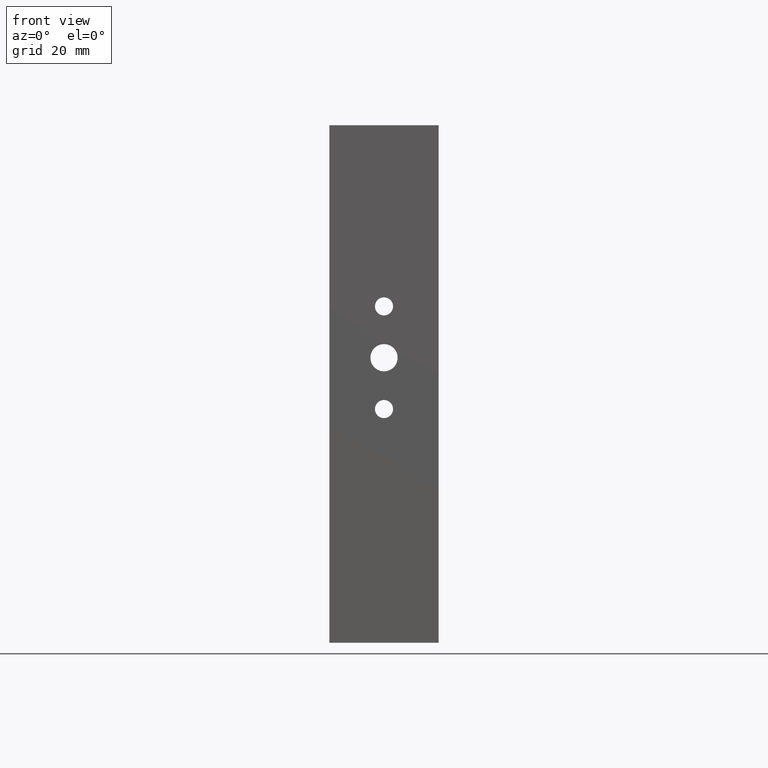
[diagram: clean part render]
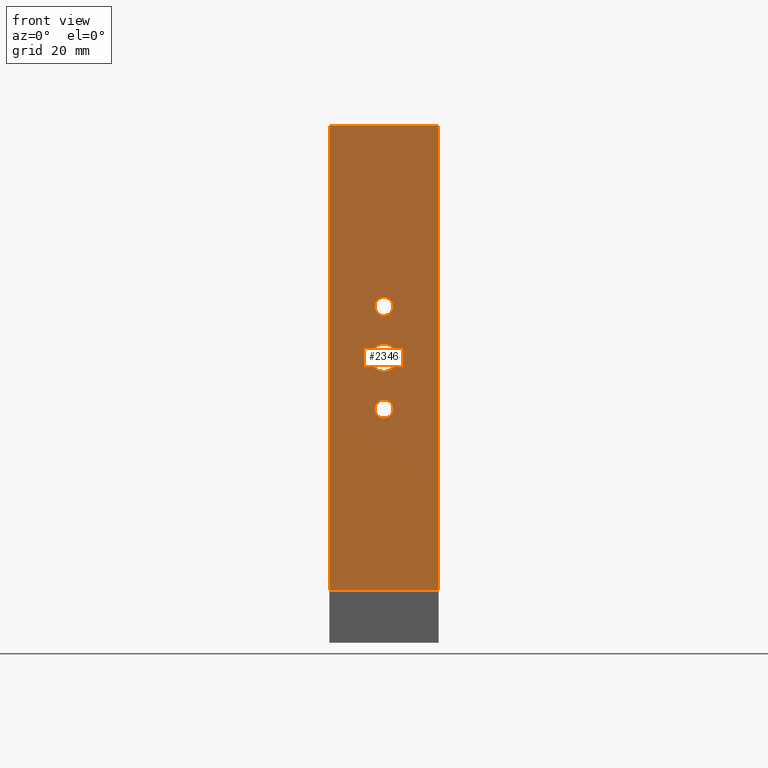
[diagram: same view with one face highlighted and labeled with its STEP entity id]
A machine part, front view. The second image highlights one B-rep face of the part: STEP entity #2346.
In plain terms, the highlighted planar face has unit normal (0, 1, 0).
Its self-contained STEP definition (entity closure, byte-faithful):
#43 = EDGE_CURVE ( 'NONE', #6162, #2077, #7346, .T. ) ;
#65 = CIRCLE ( 'NONE', #1881, 2.247899999999996900 ) ;
#126 = VERTEX_POINT ( 'NONE', #8044 ) ;
#140 = FACE_BOUND ( 'NONE', #7896, .T. ) ;
#196 = EDGE_CURVE ( 'NONE', #6162, #4966, #2399, .T. ) ;
#203 = DIRECTION ( 'NONE',  ( 0.0000000000000000000, 0.0000000000000000000, 1.000000000000000000 ) ) ;
#319 = DIRECTION ( 'NONE',  ( 0.0000000000000000000, 0.0000000000000000000, 1.000000000000000000 ) ) ;
#422 = CARTESIAN_POINT ( 'NONE',  ( -5.068119891008173300, -1.880108991825614900, 14.94789999999999700 ) ) ;
#504 = VERTEX_POINT ( 'NONE', #1446 ) ;
#568 = LINE ( 'NONE', #4132, #7768 ) ;
#706 = CIRCLE ( 'NONE', #6064, 2.247899999999996900 ) ;
#734 = VECTOR ( 'NONE', #4720, 1000.000000000000000 ) ;
#787 = ORIENTED_EDGE ( 'NONE', *, *, #2552, .T. ) ;
#915 = ORIENTED_EDGE ( 'NONE', *, *, #7558, .F. ) ;
#961 = ORIENTED_EDGE ( 'NONE', *, *, #196, .F. ) ;
#1118 = DIRECTION ( 'NONE',  ( -0.0000000000000000000, 1.000000000000000000, -0.0000000000000000000 ) ) ;
#1219 = CIRCLE ( 'NONE', #7625, 2.247899999999996900 ) ;
#1394 = DIRECTION ( 'NONE',  ( -0.0000000000000000000, 1.000000000000000000, -0.0000000000000000000 ) ) ;
#1446 = CARTESIAN_POINT ( 'NONE',  ( 8.431880108991826700, -1.880108991825614900, -57.50000000000000000 ) ) ;
#1554 = LINE ( 'NONE', #8207, #8173 ) ;
#1601 = VERTEX_POINT ( 'NONE', #5506 ) ;
#1631 = DIRECTION ( 'NONE',  ( 0.0000000000000000000, -0.0000000000000000000, 1.000000000000000000 ) ) ;
#1881 = AXIS2_PLACEMENT_3D ( 'NONE', #6475, #1394, #319 ) ;
#1997 = AXIS2_PLACEMENT_3D ( 'NONE', #7498, #1118, #7476 ) ;
#2077 = VERTEX_POINT ( 'NONE', #2969 ) ;
#2128 = CIRCLE ( 'NONE', #5060, 3.378199999999998300 ) ;
#2191 = CARTESIAN_POINT ( 'NONE',  ( -18.56811989100817000, -1.880108991825614900, 57.50000000000000000 ) ) ;
#2201 = ORIENTED_EDGE ( 'NONE', *, *, #7954, .T. ) ;
#2296 = CARTESIAN_POINT ( 'NONE',  ( -18.56811989100817000, -1.880108991825614900, 57.50000000000000000 ) ) ;
#2346 = ADVANCED_FACE ( 'NONE', ( #5314, #140, #4003, #3497 ), #5344, .F. ) ;
#2399 = LINE ( 'NONE', #2296, #4811 ) ;
#2456 = AXIS2_PLACEMENT_3D ( 'NONE', #2691, #5828, #5908 ) ;
#2552 = EDGE_CURVE ( 'NONE', #7747, #1601, #1219, .T. ) ;
#2651 = ORIENTED_EDGE ( 'NONE', *, *, #43, .T. ) ;
#2691 = CARTESIAN_POINT ( 'NONE',  ( -5.068119891008173300, -1.880108991825614900, 0.0000000000000000000 ) ) ;
#2773 = CARTESIAN_POINT ( 'NONE',  ( -5.068119891008173300, -1.880108991825614900, 3.378199999999998300 ) ) ;
#2825 = DIRECTION ( 'NONE',  ( -0.0000000000000000000, 1.000000000000000000, -0.0000000000000000000 ) ) ;
#2969 = CARTESIAN_POINT ( 'NONE',  ( -18.56811989100817000, -1.880108991825614900, -57.50000000000000000 ) ) ;
#2973 = AXIS2_PLACEMENT_3D ( 'NONE', #2191, #7997, #1631 ) ;
#3086 = CARTESIAN_POINT ( 'NONE',  ( -5.068119891008173300, -1.880108991825614900, -3.378199999999998300 ) ) ;
#3145 = VERTEX_POINT ( 'NONE', #3086 ) ;
#3497 = FACE_OUTER_BOUND ( 'NONE', #3968, .T. ) ;
#3542 = CIRCLE ( 'NONE', #1997, 2.247899999999996900 ) ;
#3656 = DIRECTION ( 'NONE',  ( -0.0000000000000000000, 1.000000000000000000, -0.0000000000000000000 ) ) ;
#3748 = EDGE_LOOP ( 'NONE', ( #6822, #3759 ) ) ;
#3759 = ORIENTED_EDGE ( 'NONE', *, *, #5878, .T. ) ;
#3874 = CIRCLE ( 'NONE', #2456, 3.378199999999998300 ) ;
#3903 = EDGE_CURVE ( 'NONE', #6861, #3145, #3874, .T. ) ;
#3908 = EDGE_CURVE ( 'NONE', #1601, #7747, #706, .T. ) ;
#3927 = EDGE_CURVE ( 'NONE', #6020, #126, #65, .T. ) ;
#3968 = EDGE_LOOP ( 'NONE', ( #2201, #915, #961, #2651 ) ) ;
#3998 = DIRECTION ( 'NONE',  ( -0.0000000000000000000, 1.000000000000000000, -0.0000000000000000000 ) ) ;
#4003 = FACE_BOUND ( 'NONE', #3748, .T. ) ;
#4071 = CARTESIAN_POINT ( 'NONE',  ( -18.56811989100817000, -1.880108991825614900, 57.50000000000000000 ) ) ;
#4112 = CARTESIAN_POINT ( 'NONE',  ( -5.068119891008173300, -1.880108991825614900, 0.0000000000000000000 ) ) ;
#4132 = CARTESIAN_POINT ( 'NONE',  ( 8.431880108991826700, -1.880108991825614900, 57.50000000000000000 ) ) ;
#4135 = DIRECTION ( 'NONE',  ( 0.0000000000000000000, 0.0000000000000000000, 1.000000000000000000 ) ) ;
#4256 = CARTESIAN_POINT ( 'NONE',  ( -5.068119891008173300, -1.880108991825614900, 12.69999999999999900 ) ) ;
#4339 = DIRECTION ( 'NONE',  ( 1.000000000000000000, 0.0000000000000000000, 0.0000000000000000000 ) ) ;
#4564 = EDGE_LOOP ( 'NONE', ( #787, #6177 ) ) ;
#4720 = DIRECTION ( 'NONE',  ( -0.0000000000000000000, -0.0000000000000000000, -1.000000000000000000 ) ) ;
#4811 = VECTOR ( 'NONE', #6741, 1000.000000000000000 ) ;
#4966 = VERTEX_POINT ( 'NONE', #7452 ) ;
#5024 = EDGE_CURVE ( 'NONE', #126, #6020, #3542, .T. ) ;
#5060 = AXIS2_PLACEMENT_3D ( 'NONE', #4112, #2825, #4135 ) ;
#5263 = ORIENTED_EDGE ( 'NONE', *, *, #3927, .T. ) ;
#5314 = FACE_BOUND ( 'NONE', #4564, .T. ) ;
#5344 = PLANE ( 'NONE',  #2973 ) ;
#5506 = CARTESIAN_POINT ( 'NONE',  ( -5.068119891008173300, -1.880108991825614900, 10.45210000000000200 ) ) ;
#5828 = DIRECTION ( 'NONE',  ( -0.0000000000000000000, 1.000000000000000000, -0.0000000000000000000 ) ) ;
#5878 = EDGE_CURVE ( 'NONE', #3145, #6861, #2128, .T. ) ;
#5908 = DIRECTION ( 'NONE',  ( 0.0000000000000000000, 0.0000000000000000000, 1.000000000000000000 ) ) ;
#6020 = VERTEX_POINT ( 'NONE', #7785 ) ;
#6064 = AXIS2_PLACEMENT_3D ( 'NONE', #7864, #3998, #203 ) ;
#6162 = VERTEX_POINT ( 'NONE', #4071 ) ;
#6177 = ORIENTED_EDGE ( 'NONE', *, *, #3908, .T. ) ;
#6475 = CARTESIAN_POINT ( 'NONE',  ( -5.068119891008173300, -1.880108991825614900, -12.69999999999999900 ) ) ;
#6690 = DIRECTION ( 'NONE',  ( -0.0000000000000000000, -0.0000000000000000000, -1.000000000000000000 ) ) ;
#6741 = DIRECTION ( 'NONE',  ( 1.000000000000000000, 0.0000000000000000000, 0.0000000000000000000 ) ) ;
#6822 = ORIENTED_EDGE ( 'NONE', *, *, #3903, .T. ) ;
#6861 = VERTEX_POINT ( 'NONE', #2773 ) ;
#6876 = DIRECTION ( 'NONE',  ( 0.0000000000000000000, 0.0000000000000000000, 1.000000000000000000 ) ) ;
#7342 = CARTESIAN_POINT ( 'NONE',  ( -18.56811989100817000, -1.880108991825614900, 57.50000000000000000 ) ) ;
#7346 = LINE ( 'NONE', #7342, #734 ) ;
#7452 = CARTESIAN_POINT ( 'NONE',  ( 8.431880108991826700, -1.880108991825614900, 57.50000000000000000 ) ) ;
#7476 = DIRECTION ( 'NONE',  ( 0.0000000000000000000, 0.0000000000000000000, 1.000000000000000000 ) ) ;
#7498 = CARTESIAN_POINT ( 'NONE',  ( -5.068119891008173300, -1.880108991825614900, -12.69999999999999900 ) ) ;
#7558 = EDGE_CURVE ( 'NONE', #4966, #504, #568, .T. ) ;
#7625 = AXIS2_PLACEMENT_3D ( 'NONE', #4256, #3656, #6876 ) ;
#7747 = VERTEX_POINT ( 'NONE', #422 ) ;
#7768 = VECTOR ( 'NONE', #6690, 1000.000000000000000 ) ;
#7785 = CARTESIAN_POINT ( 'NONE',  ( -5.068119891008173300, -1.880108991825614900, -14.94789999999999700 ) ) ;
#7829 = ORIENTED_EDGE ( 'NONE', *, *, #5024, .T. ) ;
#7864 = CARTESIAN_POINT ( 'NONE',  ( -5.068119891008173300, -1.880108991825614900, 12.69999999999999900 ) ) ;
#7896 = EDGE_LOOP ( 'NONE', ( #7829, #5263 ) ) ;
#7954 = EDGE_CURVE ( 'NONE', #2077, #504, #1554, .T. ) ;
#7997 = DIRECTION ( 'NONE',  ( 0.0000000000000000000, 1.000000000000000000, 0.0000000000000000000 ) ) ;
#8044 = CARTESIAN_POINT ( 'NONE',  ( -5.068119891008173300, -1.880108991825614900, -10.45210000000000200 ) ) ;
#8173 = VECTOR ( 'NONE', #4339, 1000.000000000000000 ) ;
#8207 = CARTESIAN_POINT ( 'NONE',  ( -18.56811989100817000, -1.880108991825614900, -57.50000000000000000 ) ) ;